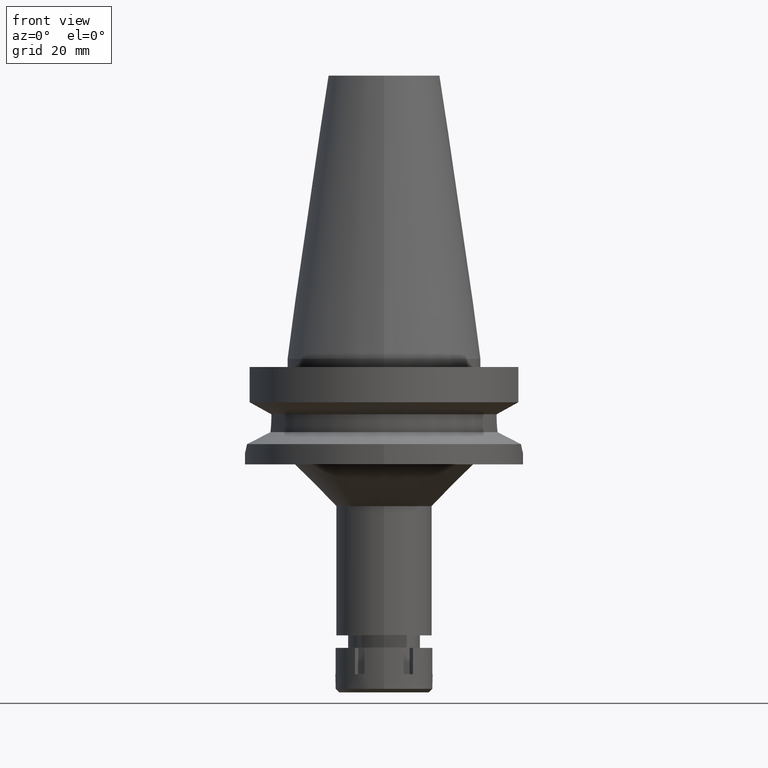
[diagram: clean part render]
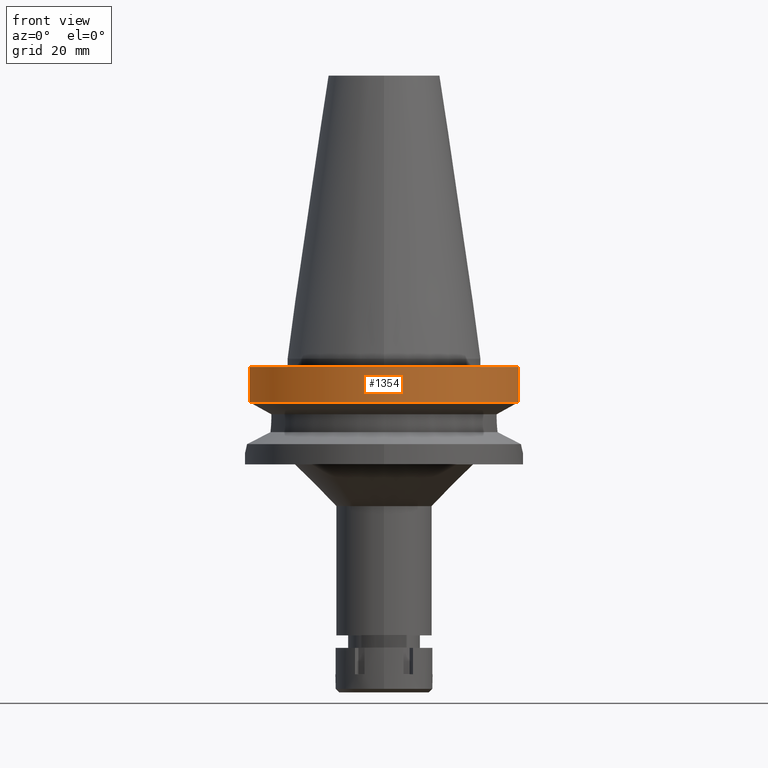
[diagram: same view with one face highlighted and labeled with its STEP entity id]
A machine part, front view. The second image highlights one B-rep face of the part: STEP entity #1354.
In plain terms, the highlighted cylindrical surface (partial cylindrical patch) has radius 50 mm, axis along (0, 0, -1).
Its self-contained STEP definition (entity closure, byte-faithful):
#82 = DIRECTION ( 'NONE',  ( -8.097482992936604252E-08, -3.044939632422851171E-07, -0.9999999999999503730 ) ) ;
#254 = CARTESIAN_POINT ( 'NONE',  ( 48.32057015392000210, -12.84999999999999964, -15.66269223573000069 ) ) ;
#290 = CARTESIAN_POINT ( 'NONE',  ( 48.32057015392000210, -12.84999999999999964, -3.000000000000000000 ) ) ;
#562 = LINE ( 'NONE', #290, #1989 ) ;
#563 = AXIS2_PLACEMENT_3D ( 'NONE', #3210, #618, #2926 ) ;
#618 = DIRECTION ( 'NONE',  ( 0.0000000000000000000, 0.0000000000000000000, -1.000000000000000000 ) ) ;
#776 = EDGE_LOOP ( 'NONE', ( #1093, #948, #3187, #3461 ) ) ;
#847 = EDGE_CURVE ( 'NONE', #1134, #3389, #1101, .T. ) ;
#889 = CARTESIAN_POINT ( 'NONE',  ( 0.0000000000000000000, 2.602251983507999750E-14, -3.000000000000000000 ) ) ;
#943 = CARTESIAN_POINT ( 'NONE',  ( -48.32057015392000210, -12.84999999999999964, -3.000000000000000000 ) ) ;
#948 = ORIENTED_EDGE ( 'NONE', *, *, #1001, .T. ) ;
#955 = DIRECTION ( 'NONE',  ( 0.0000000000000000000, 0.0000000000000000000, -1.000000000000000000 ) ) ;
#1001 = EDGE_CURVE ( 'NONE', #1953, #3011, #3307, .T. ) ;
#1093 = ORIENTED_EDGE ( 'NONE', *, *, #3076, .F. ) ;
#1101 = CIRCLE ( 'NONE', #2710, 50.00000000000000000 ) ;
#1134 = VERTEX_POINT ( 'NONE', #3247 ) ;
#1198 = CYLINDRICAL_SURFACE ( 'NONE', #563, 50.00000000000000000 ) ;
#1253 = DIRECTION ( 'NONE',  ( 0.0000000000000000000, -1.000000000000000000, 0.0000000000000000000 ) ) ;
#1354 = ADVANCED_FACE ( 'NONE', ( #1956 ), #1198, .T. ) ;
#1444 = DIRECTION ( 'NONE',  ( -8.096522556121603209E-08, 3.044578445950851433E-07, 0.9999999999999503730 ) ) ;
#1885 = CARTESIAN_POINT ( 'NONE',  ( -48.32056912869000342, -12.85000385524999977, -15.66265770075999875 ) ) ;
#1953 = VERTEX_POINT ( 'NONE', #1885 ) ;
#1956 = FACE_OUTER_BOUND ( 'NONE', #776, .T. ) ;
#1989 = VECTOR ( 'NONE', #82, 1000.000000000000114 ) ;
#2187 = AXIS2_PLACEMENT_3D ( 'NONE', #3225, #2668, #1253 ) ;
#2605 = CARTESIAN_POINT ( 'NONE',  ( -48.32056912869000342, -12.85000385524999977, -15.66265770075999875 ) ) ;
#2668 = DIRECTION ( 'NONE',  ( 0.0000000000000000000, 0.0000000000000000000, 1.000000000000000000 ) ) ;
#2688 = EDGE_CURVE ( 'NONE', #1134, #3011, #562, .T. ) ;
#2710 = AXIS2_PLACEMENT_3D ( 'NONE', #889, #955, #2893 ) ;
#2893 = DIRECTION ( 'NONE',  ( 0.0000000000000000000, -1.000000000000000000, 0.0000000000000000000 ) ) ;
#2926 = DIRECTION ( 'NONE',  ( 0.0000000000000000000, -1.000000000000000000, 0.0000000000000000000 ) ) ;
#3011 = VERTEX_POINT ( 'NONE', #254 ) ;
#3023 = VECTOR ( 'NONE', #1444, 1000.000000000000114 ) ;
#3076 = EDGE_CURVE ( 'NONE', #1953, #3389, #3400, .T. ) ;
#3187 = ORIENTED_EDGE ( 'NONE', *, *, #2688, .F. ) ;
#3210 = CARTESIAN_POINT ( 'NONE',  ( 0.0000000000000000000, 2.602251983507999750E-14, 112.4900000000000091 ) ) ;
#3225 = CARTESIAN_POINT ( 'NONE',  ( 0.0000000000000000000, 1.006319759053999930E-14, -15.66269223573000069 ) ) ;
#3247 = CARTESIAN_POINT ( 'NONE',  ( 48.32057015392000210, -12.84999999999999964, -3.000000000000000000 ) ) ;
#3307 = CIRCLE ( 'NONE', #2187, 50.00000000000000000 ) ;
#3389 = VERTEX_POINT ( 'NONE', #943 ) ;
#3400 = LINE ( 'NONE', #2605, #3023 ) ;
#3461 = ORIENTED_EDGE ( 'NONE', *, *, #847, .T. ) ;